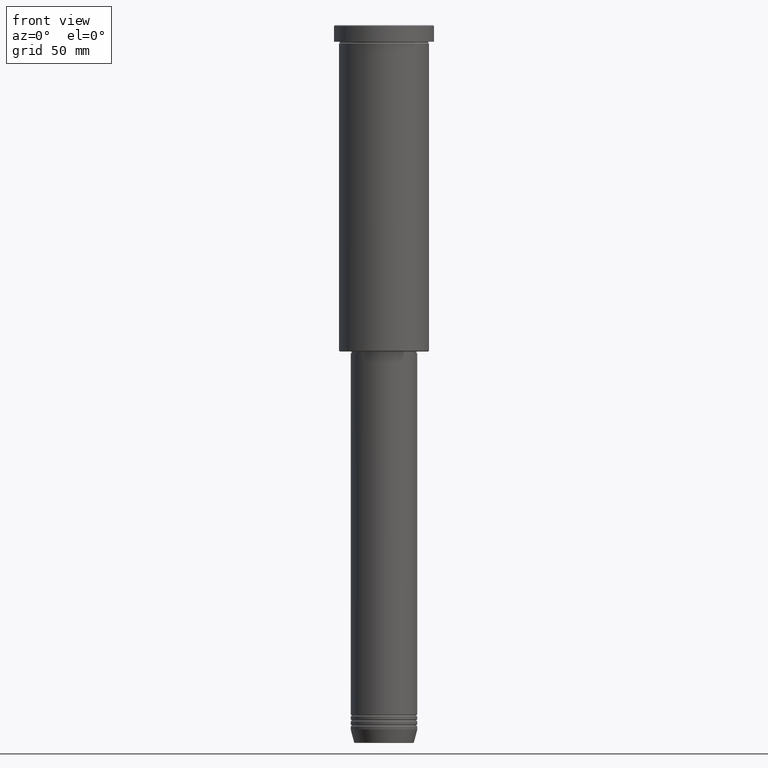
[diagram: clean part render]
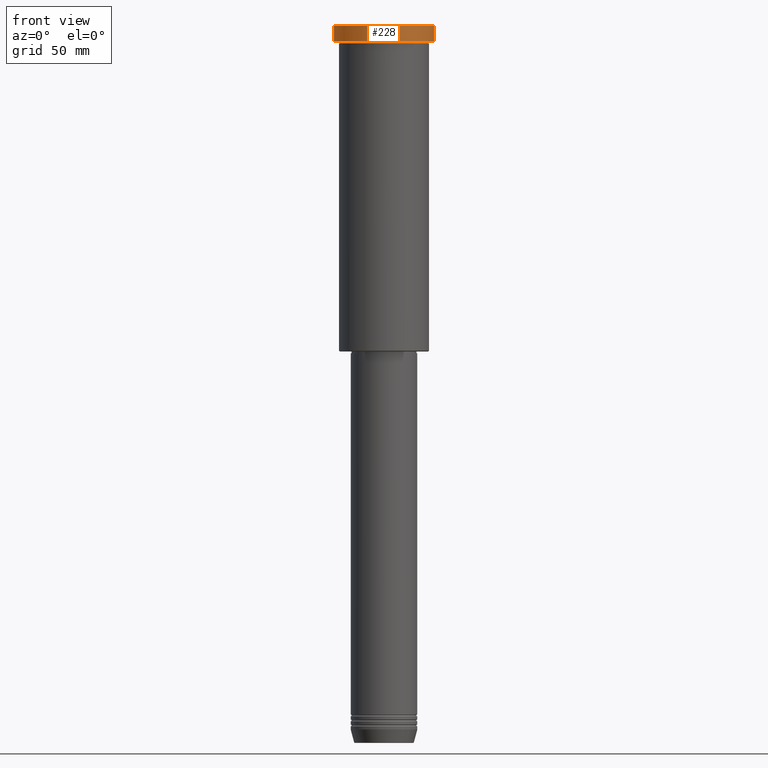
[diagram: same view with one face highlighted and labeled with its STEP entity id]
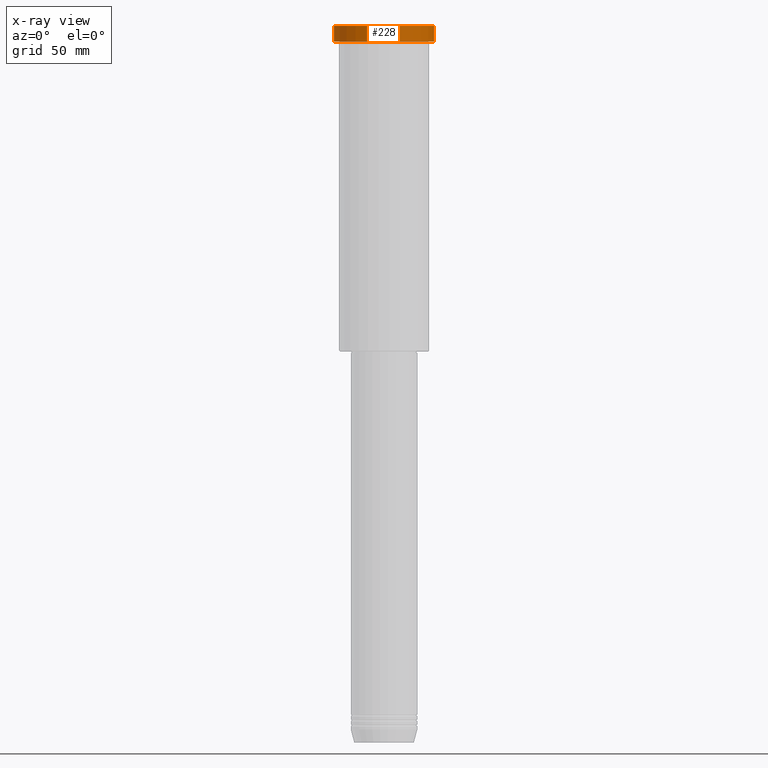
[diagram: x-ray of the same camera — body ghosted, the highlighted face saturated]
A machine part, front view. The second image highlights one B-rep face of the part: STEP entity #228.
The next image is the same camera in x-ray: the body ghosted, the highlighted face saturated — about 0% of this face is hidden behind the body in this view.
In plain terms, the highlighted cylindrical surface (partial cylindrical patch) has radius 30 mm, axis along (-0, -0, 1).
Its self-contained STEP definition (entity closure, byte-faithful):
#19 = VERTEX_POINT ( 'NONE', #322 ) ;
#45 = ORIENTED_EDGE ( 'NONE', *, *, #816, .T. ) ;
#80 = DIRECTION ( 'NONE',  ( -0.000000000000000000, -0.000000000000000000, 1.000000000000000000 ) ) ;
#125 = CARTESIAN_POINT ( 'NONE',  ( 0.000000000000000000, 0.000000000000000000, 0.000000000000000000 ) ) ;
#128 = VERTEX_POINT ( 'NONE', #130 ) ;
#130 = CARTESIAN_POINT ( 'NONE',  ( 30.00000000000000000, 0.000000000000000000, -0.5000000000000073275 ) ) ;
#141 = ORIENTED_EDGE ( 'NONE', *, *, #716, .T. ) ;
#170 = DIRECTION ( 'NONE',  ( 0.000000000000000000, 0.000000000000000000, -1.000000000000000000 ) ) ;
#208 = ORIENTED_EDGE ( 'NONE', *, *, #581, .F. ) ;
#228 = ADVANCED_FACE ( 'NONE', ( #571 ), #920, .T. ) ;
#233 = DIRECTION ( 'NONE',  ( -0.000000000000000000, -0.000000000000000000, 1.000000000000000000 ) ) ;
#256 = EDGE_LOOP ( 'NONE', ( #208, #1098, #141, #45 ) ) ;
#260 = VECTOR ( 'NONE', #1145, 1000.000000000000000 ) ;
#262 = DIRECTION ( 'NONE',  ( 1.000000000000000000, 0.000000000000000000, 0.000000000000000000 ) ) ;
#282 = CARTESIAN_POINT ( 'NONE',  ( -30.00000000000000000, 3.673940397442059178E-15, -9.999999999999992895 ) ) ;
#310 = CIRCLE ( 'NONE', #948, 30.00000000000000000 ) ;
#320 = DIRECTION ( 'NONE',  ( 1.000000000000000000, 0.000000000000000000, 0.000000000000000000 ) ) ;
#322 = CARTESIAN_POINT ( 'NONE',  ( 30.00000000000000000, 0.000000000000000000, -9.999999999999992895 ) ) ;
#353 = CIRCLE ( 'NONE', #533, 30.00000000000000000 ) ;
#487 = VERTEX_POINT ( 'NONE', #282 ) ;
#533 = AXIS2_PLACEMENT_3D ( 'NONE', #876, #80, #262 ) ;
#571 = FACE_OUTER_BOUND ( 'NONE', #256, .T. ) ;
#574 = CARTESIAN_POINT ( 'NONE',  ( -30.00000000000000000, 3.673940397442059178E-15, 0.000000000000000000 ) ) ;
#581 = EDGE_CURVE ( 'NONE', #487, #726, #1049, .T. ) ;
#674 = LINE ( 'NONE', #762, #260 ) ;
#716 = EDGE_CURVE ( 'NONE', #19, #128, #674, .T. ) ;
#726 = VERTEX_POINT ( 'NONE', #1075 ) ;
#762 = CARTESIAN_POINT ( 'NONE',  ( 30.00000000000000000, 0.000000000000000000, 0.000000000000000000 ) ) ;
#812 = AXIS2_PLACEMENT_3D ( 'NONE', #125, #1137, #320 ) ;
#816 = EDGE_CURVE ( 'NONE', #128, #726, #310, .T. ) ;
#817 = EDGE_CURVE ( 'NONE', #487, #19, #353, .T. ) ;
#876 = CARTESIAN_POINT ( 'NONE',  ( 0.000000000000000000, 0.000000000000000000, -9.999999999999992895 ) ) ;
#920 = CYLINDRICAL_SURFACE ( 'NONE', #812, 30.00000000000000000 ) ;
#948 = AXIS2_PLACEMENT_3D ( 'NONE', #957, #170, #970 ) ;
#957 = CARTESIAN_POINT ( 'NONE',  ( 0.000000000000000000, 0.000000000000000000, -0.5000000000000073275 ) ) ;
#970 = DIRECTION ( 'NONE',  ( 1.000000000000000000, 0.000000000000000000, 0.000000000000000000 ) ) ;
#1020 = VECTOR ( 'NONE', #233, 1000.000000000000000 ) ;
#1049 = LINE ( 'NONE', #574, #1020 ) ;
#1075 = CARTESIAN_POINT ( 'NONE',  ( -30.00000000000000000, 3.673940397442059178E-15, -0.5000000000000073275 ) ) ;
#1098 = ORIENTED_EDGE ( 'NONE', *, *, #817, .T. ) ;
#1137 = DIRECTION ( 'NONE',  ( -0.000000000000000000, -0.000000000000000000, 1.000000000000000000 ) ) ;
#1145 = DIRECTION ( 'NONE',  ( -0.000000000000000000, -0.000000000000000000, 1.000000000000000000 ) ) ;